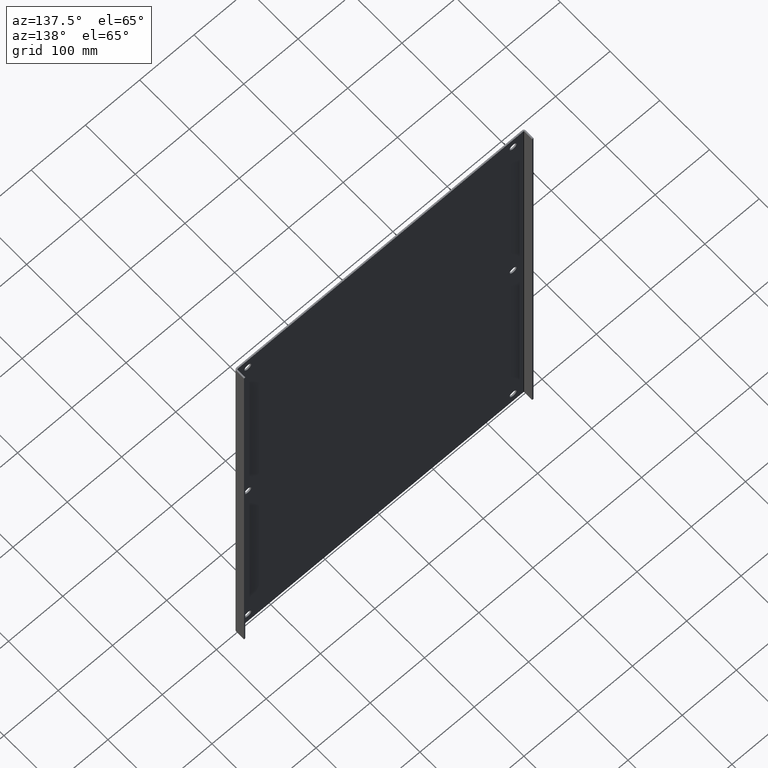
[diagram: clean part render]
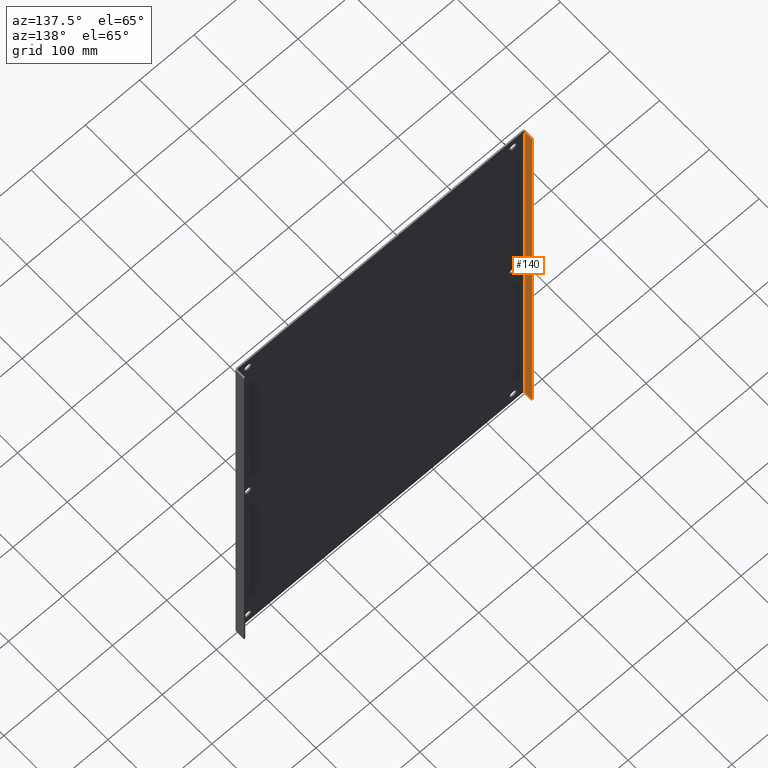
[diagram: same view with one face highlighted and labeled with its STEP entity id]
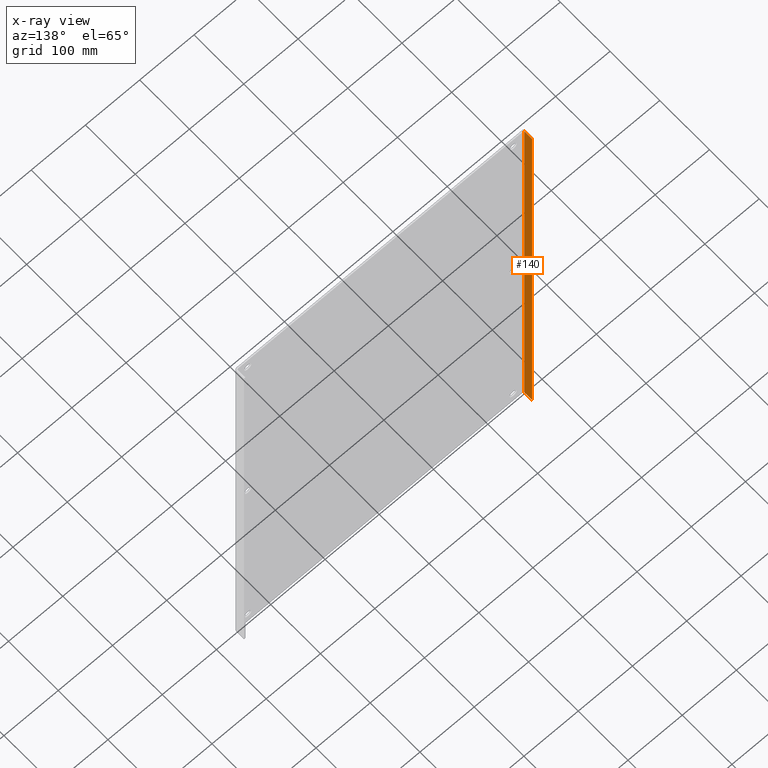
[diagram: x-ray of the same camera — body ghosted, the highlighted face saturated]
A machine part, auxiliary view. The second image highlights one B-rep face of the part: STEP entity #140.
The next image is the same camera in x-ray: the body ghosted, the highlighted face saturated — about 0% of this face is hidden behind the body in this view.
In plain terms, the highlighted planar face has unit normal (1, -0, 0).
Its self-contained STEP definition (entity closure, byte-faithful):
#23 = EDGE_CURVE ( 'NONE', #287, #761, #648, .T. ) ;
#42 = VERTEX_POINT ( 'NONE', #243 ) ;
#72 = DIRECTION ( 'NONE',  ( 0.0000000000000000000, 1.000000000000000000, -0.0000000000000000000 ) ) ;
#140 = ADVANCED_FACE ( 'NONE', ( #289 ), #970, .T. ) ;
#143 = DIRECTION ( 'NONE',  ( 0.0000000000000000000, -0.0000000000000000000, -1.000000000000000000 ) ) ;
#150 = EDGE_CURVE ( 'NONE', #42, #725, #914, .T. ) ;
#156 = CARTESIAN_POINT ( 'NONE',  ( -10.40499999999999936, 0.1250000000000000000, -16.50000000000000000 ) ) ;
#203 = ORIENTED_EDGE ( 'NONE', *, *, #23, .T. ) ;
#243 = CARTESIAN_POINT ( 'NONE',  ( -10.40499999999999936, 0.7500000000000001110, -16.50000000000000000 ) ) ;
#286 = DIRECTION ( 'NONE',  ( -0.0000000000000000000, -1.000000000000000000, -0.0000000000000000000 ) ) ;
#287 = VERTEX_POINT ( 'NONE', #768 ) ;
#289 = FACE_OUTER_BOUND ( 'NONE', #404, .T. ) ;
#348 = DIRECTION ( 'NONE',  ( 6.123233995736769734E-17, 1.000000000000000000, 0.0000000000000000000 ) ) ;
#404 = EDGE_LOOP ( 'NONE', ( #892, #977, #1023, #203 ) ) ;
#411 = VECTOR ( 'NONE', #72, 39.37007874015748143 ) ;
#433 = DIRECTION ( 'NONE',  ( 1.000000000000000000, -6.123233995736769734E-17, 0.0000000000000000000 ) ) ;
#435 = VECTOR ( 'NONE', #143, 39.37007874015748143 ) ;
#515 = DIRECTION ( 'NONE',  ( -0.0000000000000000000, 0.0000000000000000000, 1.000000000000000000 ) ) ;
#638 = AXIS2_PLACEMENT_3D ( 'NONE', #894, #433, #348 ) ;
#648 = LINE ( 'NONE', #937, #435 ) ;
#655 = CARTESIAN_POINT ( 'NONE',  ( -10.40499999999999936, 0.7500000000000001110, 16.50000000000000000 ) ) ;
#698 = LINE ( 'NONE', #928, #733 ) ;
#725 = VERTEX_POINT ( 'NONE', #655 ) ;
#733 = VECTOR ( 'NONE', #286, 39.37007874015748143 ) ;
#734 = CARTESIAN_POINT ( 'NONE',  ( -10.40499999999999936, 0.09499999999999998723, 16.50000000000000000 ) ) ;
#741 = EDGE_CURVE ( 'NONE', #287, #725, #889, .T. ) ;
#761 = VERTEX_POINT ( 'NONE', #156 ) ;
#768 = CARTESIAN_POINT ( 'NONE',  ( -10.40499999999999936, 0.1250000000000000000, 16.50000000000000000 ) ) ;
#864 = VECTOR ( 'NONE', #515, 39.37007874015748143 ) ;
#889 = LINE ( 'NONE', #734, #411 ) ;
#892 = ORIENTED_EDGE ( 'NONE', *, *, #1026, .F. ) ;
#894 = CARTESIAN_POINT ( 'NONE',  ( -10.40499999999999936, 0.09379024048199331720, 16.50000000000000000 ) ) ;
#904 = CARTESIAN_POINT ( 'NONE',  ( -10.40499999999999936, 0.7500000000000001110, 16.50000000000000000 ) ) ;
#914 = LINE ( 'NONE', #904, #864 ) ;
#928 = CARTESIAN_POINT ( 'NONE',  ( -10.40499999999999936, 0.09499999999999998723, -16.50000000000000000 ) ) ;
#937 = CARTESIAN_POINT ( 'NONE',  ( -10.40499999999999936, 0.1250000000000000000, 16.50000000000000000 ) ) ;
#970 = PLANE ( 'NONE',  #638 ) ;
#977 = ORIENTED_EDGE ( 'NONE', *, *, #150, .T. ) ;
#1023 = ORIENTED_EDGE ( 'NONE', *, *, #741, .F. ) ;
#1026 = EDGE_CURVE ( 'NONE', #42, #761, #698, .T. ) ;